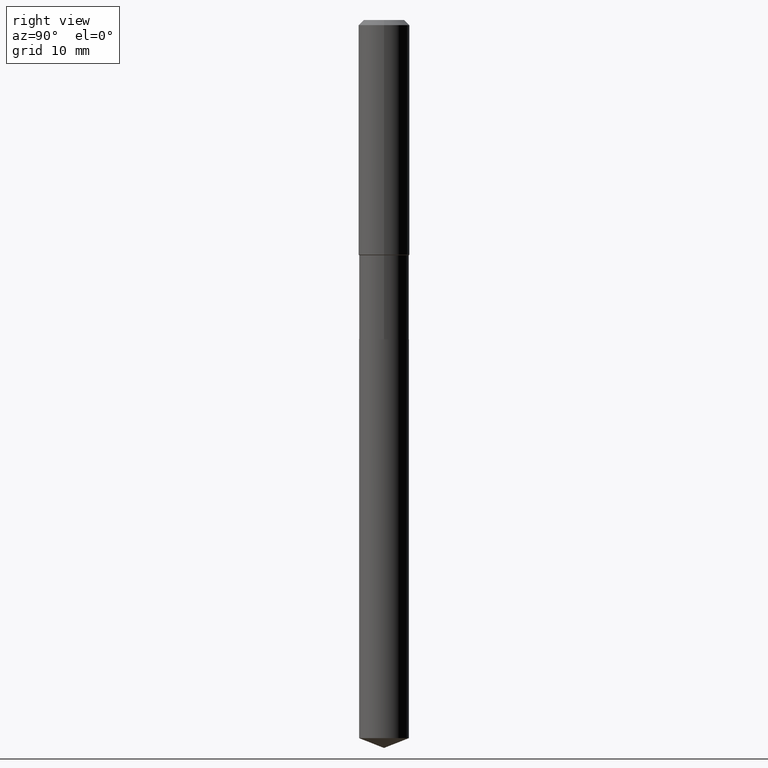
[diagram: clean part render]
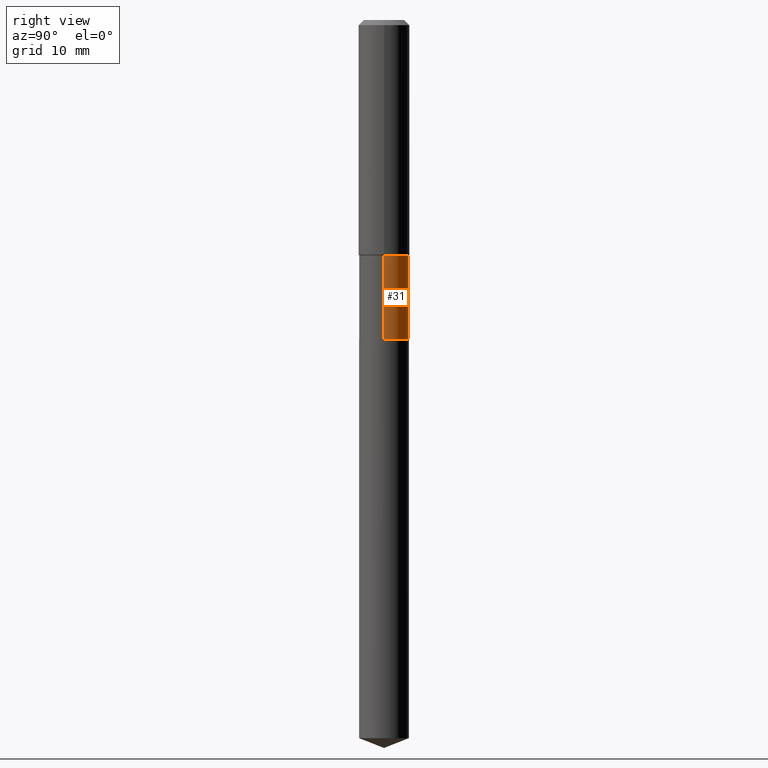
[diagram: same view with one face highlighted and labeled with its STEP entity id]
A machine part, right view. The second image highlights one B-rep face of the part: STEP entity #31.
In plain terms, the highlighted cylindrical surface (edge-blend (fillet) strip) has radius 3.9002 mm, axis along (-0, 0, 1).
Its self-contained STEP definition (entity closure, byte-faithful):
#4 = VERTEX_POINT ( 'NONE', #211 ) ;
#6 = VECTOR ( 'NONE', #405, 39.37007874015748143 ) ;
#23 = EDGE_CURVE ( 'NONE', #257, #210, #463, .T. ) ;
#30 = DIRECTION ( 'NONE',  ( -2.445468806185136597E-29, 3.491481338843145583E-15, 1.000000000000000000 ) ) ;
#31 = ADVANCED_FACE ( 'NONE', ( #128 ), #436, .T. ) ;
#39 = CIRCLE ( 'NONE', #345, 0.1535499999999999921 ) ;
#76 = AXIS2_PLACEMENT_3D ( 'NONE', #295, #30, #262 ) ;
#96 = AXIS2_PLACEMENT_3D ( 'NONE', #456, #397, #358 ) ;
#128 = FACE_OUTER_BOUND ( 'NONE', #489, .T. ) ;
#145 = VERTEX_POINT ( 'NONE', #317 ) ;
#180 = LINE ( 'NONE', #324, #6 ) ;
#184 = VECTOR ( 'NONE', #209, 39.37007874015748143 ) ;
#206 = CARTESIAN_POINT ( 'NONE',  ( 0.1535499999999999643, -1.072233919158725949E-15, 7.487369439234657779E-30 ) ) ;
#207 = ORIENTED_EDGE ( 'NONE', *, *, #266, .F. ) ;
#209 = DIRECTION ( 'NONE',  ( -2.445468806185136877E-29, 3.491481338843145188E-15, 1.000000000000000000 ) ) ;
#210 = VERTEX_POINT ( 'NONE', #400 ) ;
#211 = CARTESIAN_POINT ( 'NONE',  ( -0.1535499999999999921, -4.875903237323301486E-15, -1.968000000000000194 ) ) ;
#215 = CARTESIAN_POINT ( 'NONE',  ( 0.1535499999999999921, -7.943469194002037139E-15, -1.968000000000000194 ) ) ;
#220 = ORIENTED_EDGE ( 'NONE', *, *, #411, .T. ) ;
#225 = DIRECTION ( 'NONE',  ( 1.000000000000000000, -6.982962677686269077E-15, 0.000000000000000000 ) ) ;
#227 = CIRCLE ( 'NONE', #76, 0.1535499999999999365 ) ;
#230 = ORIENTED_EDGE ( 'NONE', *, *, #233, .T. ) ;
#233 = EDGE_CURVE ( 'NONE', #4, #145, #180, .T. ) ;
#257 = VERTEX_POINT ( 'NONE', #215 ) ;
#262 = DIRECTION ( 'NONE',  ( 1.000000000000000000, -6.982962677686265133E-15, 0.000000000000000000 ) ) ;
#266 = EDGE_CURVE ( 'NONE', #210, #145, #227, .T. ) ;
#295 = CARTESIAN_POINT ( 'NONE',  ( 3.545929768968448850E-29, -5.062647941322561509E-15, -1.450000000000000178 ) ) ;
#305 = CARTESIAN_POINT ( 'NONE',  ( 4.812682610572349594E-29, -6.871235274843310993E-15, -1.968000000000000194 ) ) ;
#317 = CARTESIAN_POINT ( 'NONE',  ( -0.1535499999999999365, -4.875903237323303063E-15, -1.450000000000000178 ) ) ;
#324 = CARTESIAN_POINT ( 'NONE',  ( -0.1535499999999999643, 1.091038370759633582E-15, -7.553024831086406471E-30 ) ) ;
#345 = AXIS2_PLACEMENT_3D ( 'NONE', #305, #421, #225 ) ;
#358 = DIRECTION ( 'NONE',  ( 1.000000000000000000, -6.982962677686266711E-15, 4.876176775795935793E-29 ) ) ;
#397 = DIRECTION ( 'NONE',  ( -2.445468806185136597E-29, 3.491481338843145583E-15, 1.000000000000000000 ) ) ;
#400 = CARTESIAN_POINT ( 'NONE',  ( 0.1535499999999999365, -6.134881860481286866E-15, -1.450000000000000178 ) ) ;
#405 = DIRECTION ( 'NONE',  ( -2.445468806185136877E-29, 3.491481338843145188E-15, 1.000000000000000000 ) ) ;
#411 = EDGE_CURVE ( 'NONE', #257, #4, #39, .T. ) ;
#412 = ORIENTED_EDGE ( 'NONE', *, *, #23, .F. ) ;
#421 = DIRECTION ( 'NONE',  ( -2.445468806185136597E-29, 3.491481338843145583E-15, 1.000000000000000000 ) ) ;
#436 = CYLINDRICAL_SURFACE ( 'NONE', #96, 0.1535499999999999643 ) ;
#456 = CARTESIAN_POINT ( 'NONE',  ( 0.000000000000000000, 0.000000000000000000, 0.000000000000000000 ) ) ;
#463 = LINE ( 'NONE', #206, #184 ) ;
#489 = EDGE_LOOP ( 'NONE', ( #220, #230, #207, #412 ) ) ;